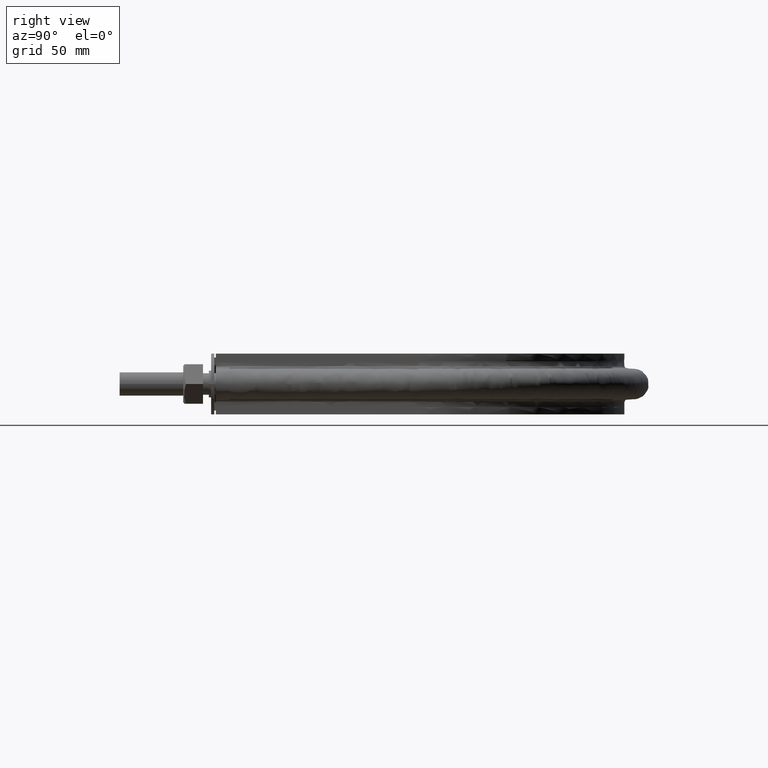
[diagram: clean part render]
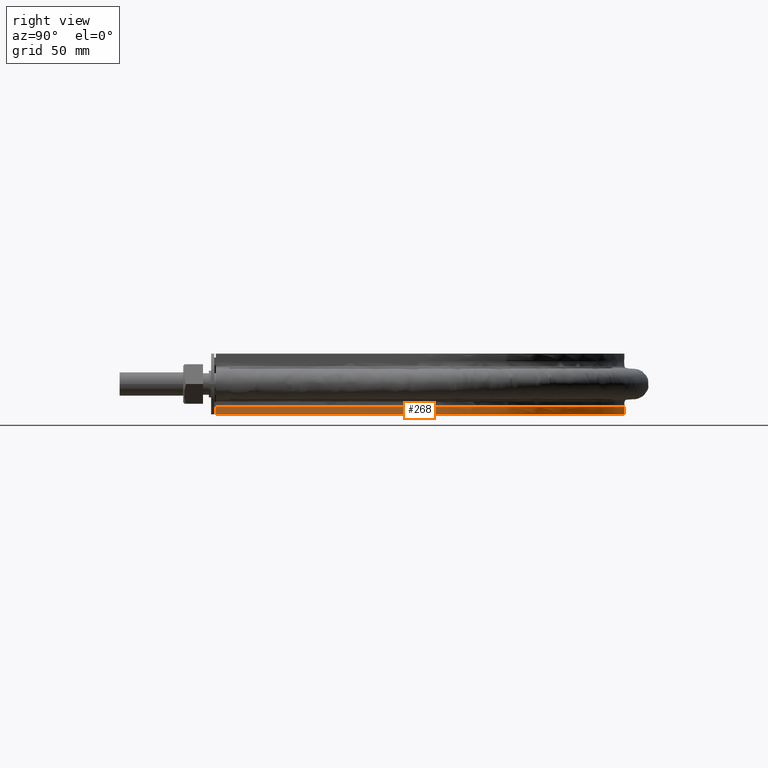
[diagram: same view with one face highlighted and labeled with its STEP entity id]
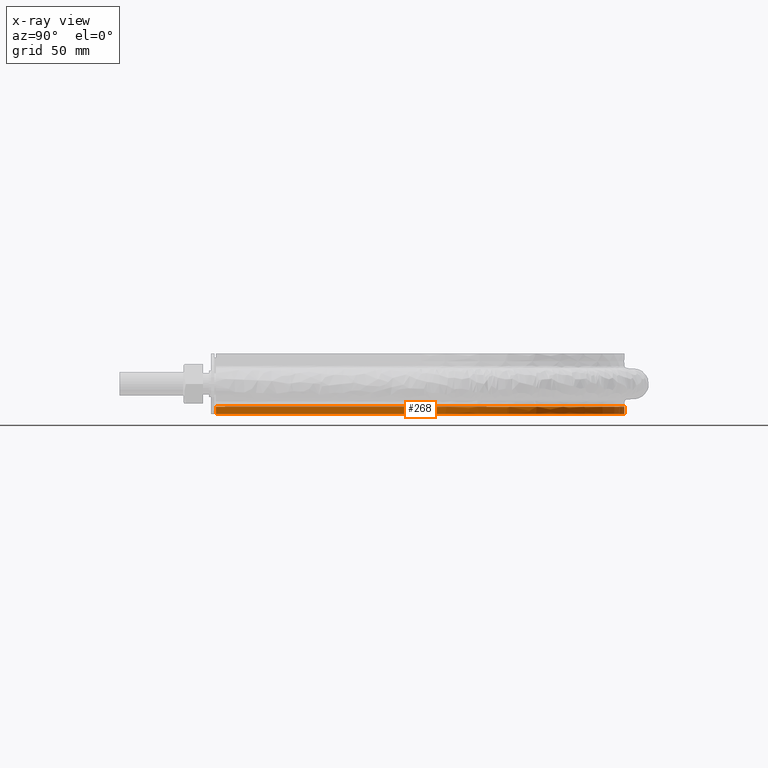
[diagram: x-ray of the same camera — body ghosted, the highlighted face saturated]
A machine part, right view. The second image highlights one B-rep face of the part: STEP entity #268.
The next image is the same camera in x-ray: the body ghosted, the highlighted face saturated — about 0% of this face is hidden behind the body in this view.
In plain terms, the highlighted face is a SurfaceOfExtrusion surface.
Its self-contained STEP definition (entity closure, byte-faithful):
#268 = ADVANCED_FACE( '', ( #365 ), #366, .T. );
#365 = FACE_OUTER_BOUND( '', #589, .T. );
#366 = SURFACE_OF_LINEAR_EXTRUSION( '', #590, #591 );
#589 = EDGE_LOOP( '', ( #1825, #1826, #1827, #1828 ) );
#590 = B_SPLINE_CURVE_WITH_KNOTS( '', 3, ( #1829, #1830, #1831, #1832, #1833, #1834, #1835, #1836, #1837, #1838, #1839, #1840, #1841, #1842, #1843, #1844, #1845, #1846, #1847, #1848, #1849, #1850, #1851, #1852, #1853, #1854, #1855, #1856, #1857, #1858, #1859, #1860, #1861, #1862, #1863, #1864, #1865, #1866, #1867, #1868, #1869, #1870, #1871, #1872, #1873, #1874, #1875, #1876, #1877, #1878, #1879, #1880, #1881, #1882, #1883, #1884, #1885, #1886, #1887, #1888, #1889, #1890, #1891, #1892, #1893, #1894, #1895, #1896, #1897, #1898, #1899, #1900, #1901, #1902, #1903, #1904, #1905, #1906, #1907, #1908, #1909, #1910, #1911, #1912, #1913, #1914, #1915, #1916, #1917, #1918, #1919, #1920, #1921 ), .UNSPECIFIED., .F., .F., ( 4, 1, 1, 2, 2, 2, 2, 2, 2, 2, 2, 2, 2, 2, 2, 2, 2, 2, 2, 2, 2, 2, 2, 2, 2, 2, 2, 2, 2, 2, 2, 2, 2, 2, 2, 2, 2, 2, 2, 2, 2, 2, 2, 2, 2, 2, 1, 4 ), ( 0.000000000000000, 0.125000000000002, 0.187500000000003, 0.191406250000003, 0.195312500000003, 0.203125000000002, 0.218750000000003, 0.250000000000003, 0.257812500000003, 0.265625000000003, 0.281250000000002, 0.312500000000002, 0.328125000000002, 0.343750000000002, 0.375000000000001, 0.390625000000001, 0.398437500000001, 0.406250000000001, 0.437500000000001, 0.453125000000001, 0.460937500000000, 0.468750000000000, 0.500000000000000, 0.515625000000000, 0.523437500000000, 0.531250000000000, 0.562500000000000, 0.578124999999999, 0.585937499999999, 0.593749999999999, 0.624999999999999, 0.656249999999999, 0.664062499999999, 0.671874999999999, 0.687499999999998, 0.718749999999998, 0.722656249999998, 0.726562499999998, 0.734374999999998, 0.749999999999998, 0.781249999999997, 0.789062499999997, 0.796874999999997, 0.804687499999997, 0.808593749999997, 0.812499999999996, 0.874999999999998, 1.00000000000000 ), .UNSPECIFIED. );
#591 = VECTOR( '', #1922, 1000.00000000000 );
#1825 = ORIENTED_EDGE( '', *, *, #2588, .T. );
#1826 = ORIENTED_EDGE( '', *, *, #2589, .T. );
#1827 = ORIENTED_EDGE( '', *, *, #2590, .F. );
#1828 = ORIENTED_EDGE( '', *, *, #2591, .F. );
#1829 = CARTESIAN_POINT( '', ( -136.950000000000, 63.5000000000001, -15.0000000000000 ) );
#1830 = CARTESIAN_POINT( '', ( -136.950000000000, 92.1083518142186, -15.0000000000000 ) );
#1831 = CARTESIAN_POINT( '', ( -136.950000000000, 135.020879535546, -15.0000000000000 ) );
#1832 = CARTESIAN_POINT( '', ( -136.950000000000, 178.827418251068, -15.0000000000000 ) );
#1833 = CARTESIAN_POINT( '', ( -136.950000000000, 194.025605152372, -15.0000000000000 ) );
#1834 = CARTESIAN_POINT( '', ( -136.950000000000, 195.813627140760, -15.0000000000000 ) );
#1835 = CARTESIAN_POINT( '', ( -136.951346114390, 196.707775042567, -15.0000000000000 ) );
#1836 = CARTESIAN_POINT( '', ( -136.920609614582, 199.386681945512, -15.0000000000000 ) );
#1837 = CARTESIAN_POINT( '', ( -136.864816667886, 201.169029468828, -15.0000000000000 ) );
#1838 = CARTESIAN_POINT( '', ( -136.593146380454, 206.505464995944, -15.0000000000000 ) );
#1839 = CARTESIAN_POINT( '', ( -136.273189661635, 210.048967525582, -15.0000000000000 ) );
#1840 = CARTESIAN_POINT( '', ( -134.901802697672, 220.637621477265, -15.0000000000000 ) );
#1841 = CARTESIAN_POINT( '', ( -133.442512350631, 227.641291170172, -15.0000000000000 ) );
#1842 = CARTESIAN_POINT( '', ( -130.901383601594, 236.322953634697, -15.0000000000000 ) );
#1843 = CARTESIAN_POINT( '', ( -130.357015832177, 238.055610275365, -15.0000000000000 ) );
#1844 = CARTESIAN_POINT( '', ( -129.193847954833, 241.513353357775, -15.0000000000000 ) );
#1845 = CARTESIAN_POINT( '', ( -128.573476846170, 243.242131151953, -15.0000000000000 ) );
#1846 = CARTESIAN_POINT( '', ( -126.618174555290, 248.362723165805, -15.0000000000000 ) );
#1847 = CARTESIAN_POINT( '', ( -125.184490197968, 251.702984774707, -15.0000000000000 ) );
#1848 = CARTESIAN_POINT( '', ( -120.505328593638, 261.510336023068, -15.0000000000000 ) );
#1849 = CARTESIAN_POINT( '', ( -116.886061102882, 267.766429658881, -15.0000000000000 ) );
#1850 = CARTESIAN_POINT( '', ( -110.711856714430, 276.729863608688, -15.0000000000000 ) );
#1851 = CARTESIAN_POINT( '', ( -108.528201325971, 279.647880339849, -15.0000000000000 ) );
#1852 = CARTESIAN_POINT( '', ( -103.904407759561, 285.334716161009, -15.0000000000000 ) );
#1853 = CARTESIAN_POINT( '', ( -101.494535344133, 288.066402872892, -15.0000000000000 ) );
#1854 = CARTESIAN_POINT( '', ( -93.9768857717446, 295.932991567950, -15.0000000000000 ) );
#1855 = CARTESIAN_POINT( '', ( -88.5810092968209, 300.739345713163, -15.0000000000000 ) );
#1856 = CARTESIAN_POINT( '', ( -79.9242816112247, 307.306932196036, -15.0000000000000 ) );
#1857 = CARTESIAN_POINT( '', ( -76.9444034133837, 309.388585548725, -15.0000000000000 ) );
#1858 = CARTESIAN_POINT( '', ( -72.3295994596727, 312.345723108325, -15.0000000000000 ) );
#1859 = CARTESIAN_POINT( '', ( -70.7649027135216, 313.304967513353, -15.0000000000000 ) );
#1860 = CARTESIAN_POINT( '', ( -67.6140063459477, 315.151291429898, -15.0000000000000 ) );
#1861 = CARTESIAN_POINT( '', ( -66.0248395654166, 316.040393152112, -15.0000000000000 ) );
#1862 = CARTESIAN_POINT( '', ( -58.0112237793678, 320.317614365294, -15.0000000000000 ) );
#1863 = CARTESIAN_POINT( '', ( -51.3838695117621, 323.201965048637, -15.0000000000000 ) );
#1864 = CARTESIAN_POINT( '', ( -41.1199306990064, 326.726783518546, -15.0000000000000 ) );
#1865 = CARTESIAN_POINT( '', ( -37.6449536795551, 327.768486983704, -15.0000000000000 ) );
#1866 = CARTESIAN_POINT( '', ( -32.3508572250080, 329.128370680882, -15.0000000000000 ) );
#1867 = CARTESIAN_POINT( '', ( -30.5711219683573, 329.548134877370, -15.0000000000000 ) );
#1868 = CARTESIAN_POINT( '', ( -26.9898806015859, 330.317593884026, -15.0000000000000 ) );
#1869 = CARTESIAN_POINT( '', ( -25.1975634552110, 330.665375332185, -15.0000000000000 ) );
#1870 = CARTESIAN_POINT( '', ( -16.2276412077899, 332.222717729931, -15.0000000000000 ) );
#1871 = CARTESIAN_POINT( '', ( -9.02523440856736, 332.892110978601, -15.0000000000000 ) );
#1872 = CARTESIAN_POINT( '', ( 1.81786937464440, 333.036051739121, -15.0000000000000 ) );
#1873 = CARTESIAN_POINT( '', ( 5.43888442947024, 332.939261125259, -15.0000000000000 ) );
#1874 = CARTESIAN_POINT( '', ( 10.8804397715058, 332.575567070277, -15.0000000000000 ) );
#1875 = CARTESIAN_POINT( '', ( 12.6959650568691, 332.417887683017, -15.0000000000000 ) );
#1876 = CARTESIAN_POINT( '', ( 16.3304010621810, 332.028795956680, -15.0000000000000 ) );
#1877 = CARTESIAN_POINT( '', ( 18.1509778757328, 331.796964222104, -15.0000000000000 ) );
#1878 = CARTESIAN_POINT( '', ( 27.1816143256275, 330.463826032725, -15.0000000000000 ) );
#1879 = CARTESIAN_POINT( '', ( 34.2390508622090, 328.839668956545, -15.0000000000000 ) );
#1880 = CARTESIAN_POINT( '', ( 44.5810778790186, 325.588595998648, -15.0000000000000 ) );
#1881 = CARTESIAN_POINT( '', ( 47.9874716560260, 324.368228980460, -15.0000000000000 ) );
#1882 = CARTESIAN_POINT( '', ( 53.0340989443394, 322.327522487613, -15.0000000000000 ) );
#1883 = CARTESIAN_POINT( '', ( 54.7057757971050, 321.612133002601, -15.0000000000000 ) );
#1884 = CARTESIAN_POINT( '', ( 58.0278931759406, 320.110472498891, -15.0000000000000 ) );
#1885 = CARTESIAN_POINT( '', ( 59.6804492387648, 319.323156348271, -15.0000000000000 ) );
#1886 = CARTESIAN_POINT( '', ( 67.8662269615211, 315.218943105620, -15.0000000000000 ) );
#1887 = CARTESIAN_POINT( '', ( 74.0672509269300, 311.457093171529, -15.0000000000000 ) );
#1888 = CARTESIAN_POINT( '', ( 85.8066697855656, 303.021264559786, -15.0000000000000 ) );
#1889 = CARTESIAN_POINT( '', ( 91.3450708111379, 298.347294323490, -15.0000000000000 ) );
#1890 = CARTESIAN_POINT( '', ( 97.8308624293475, 291.902999344751, -15.0000000000000 ) );
#1891 = CARTESIAN_POINT( '', ( 99.1063522438762, 290.583042958306, -15.0000000000000 ) );
#1892 = CARTESIAN_POINT( '', ( 101.590244963731, 287.906741637720, -15.0000000000000 ) );
#1893 = CARTESIAN_POINT( '', ( 102.801672903783, 286.547491271698, -15.0000000000000 ) );
#1894 = CARTESIAN_POINT( '', ( 106.346254323220, 282.407722078790, -15.0000000000000 ) );
#1895 = CARTESIAN_POINT( '', ( 108.589893323643, 279.565315081670, -15.0000000000000 ) );
#1896 = CARTESIAN_POINT( '', ( 114.970214089517, 270.795700236809, -15.0000000000000 ) );
#1897 = CARTESIAN_POINT( '', ( 118.759288976830, 264.628165305693, -15.0000000000000 ) );
#1898 = CARTESIAN_POINT( '', ( 122.482049801510, 257.316381079695, -15.0000000000000 ) );
#1899 = CARTESIAN_POINT( '', ( 122.888127373353, 256.498732064797, -15.0000000000000 ) );
#1900 = CARTESIAN_POINT( '', ( 123.684984798984, 254.852857558546, -15.0000000000000 ) );
#1901 = CARTESIAN_POINT( '', ( 124.076188679038, 254.023697389435, -15.0000000000000 ) );
#1902 = CARTESIAN_POINT( '', ( 125.223076035006, 251.527782870249, -15.0000000000000 ) );
#1903 = CARTESIAN_POINT( '', ( 125.951536386374, 249.853956327217, -15.0000000000000 ) );
#1904 = CARTESIAN_POINT( '', ( 128.029666807743, 244.803138776699, -15.0000000000000 ) );
#1905 = CARTESIAN_POINT( '', ( 129.272445179675, 241.396908032732, -15.0000000000000 ) );
#1906 = CARTESIAN_POINT( '', ( 132.586786070952, 231.064969568913, -15.0000000000000 ) );
#1907 = CARTESIAN_POINT( '', ( 134.247821790206, 224.026964115281, -15.0000000000000 ) );
#1908 = CARTESIAN_POINT( '', ( 135.630952375180, 215.039845429982, -15.0000000000000 ) );
#1909 = CARTESIAN_POINT( '', ( 135.872641992840, 213.232864972872, -15.0000000000000 ) );
#1910 = CARTESIAN_POINT( '', ( 136.284803757172, 209.599422844282, -15.0000000000000 ) );
#1911 = CARTESIAN_POINT( '', ( 136.455153129533, 207.772516640443, -15.0000000000000 ) );
#1912 = CARTESIAN_POINT( '', ( 136.721567786733, 204.123756924611, -15.0000000000000 ) );
#1913 = CARTESIAN_POINT( '', ( 136.818027802696, 202.298840221395, -15.0000000000000 ) );
#1914 = CARTESIAN_POINT( '', ( 136.907499245267, 199.560658472589, -15.0000000000000 ) );
#1915 = CARTESIAN_POINT( '', ( 136.928116262671, 198.647796719939, -15.0000000000000 ) );
#1916 = CARTESIAN_POINT( '', ( 136.950875956315, 196.821803321072, -15.0000000000000 ) );
#1917 = CARTESIAN_POINT( '', ( 136.950000000000, 195.908627575340, -15.0000000000000 ) );
#1918 = CARTESIAN_POINT( '', ( 136.950000000000, 180.384857445817, -15.0000000000000 ) );
#1919 = CARTESIAN_POINT( '', ( 136.950000000000, 136.553035903636, -15.0000000000000 ) );
#1920 = CARTESIAN_POINT( '', ( 136.950000000000, 92.7212143614546, -15.0000000000000 ) );
#1921 = CARTESIAN_POINT( '', ( 136.950000000000, 63.5000000000000, -15.0000000000000 ) );
#1922 = DIRECTION( '', ( -7.49830360911069E-032, -3.06151588455594E-016, -1.00000000000000 ) );
#2588 = EDGE_CURVE( '', #2784, #2785, #2786, .T. );
#2589 = EDGE_CURVE( '', #2785, #2787, #2788, .F. );
#2590 = EDGE_CURVE( '', #2789, #2787, #2790, .T. );
#2591 = EDGE_CURVE( '', #2784, #2789, #2791, .F. );
#2784 = VERTEX_POINT( '', #3230 );
#2785 = VERTEX_POINT( '', #3231 );
#2786 = B_SPLINE_CURVE_WITH_KNOTS( '', 3, ( #3232, #3233, #3234, #3235, #3236, #3237, #3238, #3239, #3240, #3241, #3242, #3243, #3244, #3245, #3246, #3247, #3248, #3249, #3250, #3251, #3252, #3253, #3254, #3255, #3256, #3257, #3258, #3259, #3260, #3261, #3262, #3263, #3264, #3265, #3266, #3267, #3268, #3269, #3270, #3271, #3272, #3273, #3274, #3275, #3276, #3277, #3278, #3279, #3280, #3281, #3282, #3283, #3284, #3285, #3286, #3287, #3288, #3289, #3290, #3291, #3292, #3293, #3294, #3295, #3296, #3297, #3298, #3299, #3300, #3301, #3302, #3303, #3304, #3305, #3306, #3307, #3308, #3309, #3310, #3311, #3312, #3313, #3314, #3315, #3316, #3317, #3318, #3319, #3320, #3321, #3322, #3323, #3324 ), .UNSPECIFIED., .F., .F., ( 4, 1, 1, 2, 2, 2, 2, 2, 2, 2, 2, 2, 2, 2, 2, 2, 2, 2, 2, 2, 2, 2, 2, 2, 2, 2, 2, 2, 2, 2, 2, 2, 2, 2, 2, 2, 2, 2, 2, 2, 2, 2, 2, 2, 2, 2, 1, 4 ), ( 0.000000000000000, 0.125000000000002, 0.187500000000003, 0.191406250000003, 0.195312500000003, 0.203125000000002, 0.218750000000003, 0.250000000000003, 0.257812500000003, 0.265625000000003, 0.281250000000002, 0.312500000000002, 0.328125000000002, 0.343750000000002, 0.375000000000001, 0.390625000000001, 0.398437500000001, 0.406250000000001, 0.437500000000001, 0.453125000000001, 0.460937500000000, 0.468750000000000, 0.500000000000000, 0.515625000000000, 0.523437500000000, 0.531250000000000, 0.562500000000000, 0.578124999999999, 0.585937499999999, 0.593749999999999, 0.624999999999999, 0.656249999999999, 0.664062499999999, 0.671874999999999, 0.687499999999998, 0.718749999999998, 0.722656249999998, 0.726562499999998, 0.734374999999998, 0.749999999999998, 0.781249999999997, 0.789062499999997, 0.796874999999997, 0.804687499999997, 0.808593749999997, 0.812499999999996, 0.874999999999998, 1.00000000000000 ), .UNSPECIFIED. );
#2787 = VERTEX_POINT( '', #3325 );
#2788 = LINE( '', #3326, #3327 );
#2789 = VERTEX_POINT( '', #3328 );
#2790 = B_SPLINE_CURVE_WITH_KNOTS( '', 3, ( #3329, #3330, #3331, #3332, #3333, #3334, #3335, #3336, #3337, #3338, #3339, #3340, #3341, #3342, #3343, #3344, #3345, #3346, #3347, #3348, #3349, #3350, #3351, #3352, #3353, #3354, #3355, #3356, #3357, #3358, #3359, #3360, #3361, #3362, #3363, #3364, #3365, #3366, #3367, #3368, #3369, #3370, #3371, #3372, #3373, #3374, #3375, #3376, #3377, #3378, #3379, #3380, #3381, #3382, #3383, #3384, #3385, #3386, #3387, #3388, #3389, #3390, #3391, #3392, #3393, #3394, #3395, #3396, #3397, #3398, #3399, #3400, #3401, #3402, #3403, #3404, #3405, #3406, #3407, #3408, #3409, #3410, #3411, #3412, #3413, #3414, #3415, #3416, #3417, #3418, #3419, #3420, #3421, #3422, #3423, #3424, #3425, #3426, #3427, #3428, #3429, #3430, #3431, #3432, #3433, #3434, #3435 ), .UNSPECIFIED., .F., .F., ( 4, 1, 2, 2, 2, 2, 2, 2, 2, 2, 2, 2, 2, 2, 2, 2, 2, 2, 2, 2, 2, 2, 2, 2, 2, 2, 2, 2, 2, 2, 2, 2, 2, 2, 2, 1, 2, 2, 2, 2, 2, 2, 2, 2, 2, 2, 2, 2, 2, 2, 2, 2, 2, 1, 4 ), ( 1.38777878078145E-017, 0.0874256844655843, 0.131138526698376, 0.133870579337926, 0.136602631977475, 0.142066737256574, 0.152994947814772, 0.174851368931168, 0.180315474210268, 0.183047526849817, 0.185779579489366, 0.196707790047564, 0.218564211163960, 0.229492421722158, 0.232224474361708, 0.234956527001257, 0.240420632280356, 0.262277053396752, 0.273205263954950, 0.275937316594499, 0.278669369234049, 0.284133474513148, 0.305989895629543, 0.316918106187741, 0.322382211466840, 0.325114264106390, 0.327846316745939, 0.349702737862335, 0.360630948420533, 0.366095053699632, 0.368827106339181, 0.371559158978731, 0.393415580095126, 0.415272001211522, 0.418004053851071, 0.420736106490621, 0.426200211769720, 0.437128422327918, 0.458984843444315, 0.461716896083864, 0.464448948723414, 0.469913054002513, 0.480841264560711, 0.502697685677107, 0.508161790956207, 0.513625896235306, 0.524554106793504, 0.546410527909900, 0.551874633188999, 0.557338738468098, 0.562802843747197, 0.565534896386746, 0.568266949026296, 0.611979791259089, 0.699405475724676 ), .UNSPECIFIED. );
#2791 = LINE( '', #3436, #3437 );
#3230 = CARTESIAN_POINT( '', ( -136.950000000000, 63.5000000000001, -15.0000000000000 ) );
#3231 = CARTESIAN_POINT( '', ( 136.950000000000, 63.5000000000001, -15.0000000000000 ) );
#3232 = CARTESIAN_POINT( '', ( -136.950000000000, 63.5000000000001, -15.0000000000000 ) );
#3233 = CARTESIAN_POINT( '', ( -136.950000000000, 92.1083518142186, -15.0000000000000 ) );
#3234 = CARTESIAN_POINT( '', ( -136.950000000000, 135.020879535546, -15.0000000000000 ) );
#3235 = CARTESIAN_POINT( '', ( -136.950000000000, 178.827418251068, -15.0000000000000 ) );
#3236 = CARTESIAN_POINT( '', ( -136.950000000000, 194.025605152372, -15.0000000000000 ) );
#3237 = CARTESIAN_POINT( '', ( -136.950000000000, 195.813627140760, -15.0000000000000 ) );
#3238 = CARTESIAN_POINT( '', ( -136.951346114390, 196.707775042567, -15.0000000000000 ) );
#3239 = CARTESIAN_POINT( '', ( -136.920609614582, 199.386681945512, -15.0000000000000 ) );
#3240 = CARTESIAN_POINT( '', ( -136.864816667886, 201.169029468828, -15.0000000000000 ) );
#3241 = CARTESIAN_POINT( '', ( -136.593146380454, 206.505464995944, -15.0000000000000 ) );
#3242 = CARTESIAN_POINT( '', ( -136.273189661635, 210.048967525582, -15.0000000000000 ) );
#3243 = CARTESIAN_POINT( '', ( -134.901802697672, 220.637621477265, -15.0000000000000 ) );
#3244 = CARTESIAN_POINT( '', ( -133.442512350631, 227.641291170172, -15.0000000000000 ) );
#3245 = CARTESIAN_POINT( '', ( -130.901383601594, 236.322953634697, -15.0000000000000 ) );
#3246 = CARTESIAN_POINT( '', ( -130.357015832177, 238.055610275365, -15.0000000000000 ) );
#3247 = CARTESIAN_POINT( '', ( -129.193847954833, 241.513353357775, -15.0000000000000 ) );
#3248 = CARTESIAN_POINT( '', ( -128.573476846170, 243.242131151953, -15.0000000000000 ) );
#3249 = CARTESIAN_POINT( '', ( -126.618174555290, 248.362723165805, -15.0000000000000 ) );
#3250 = CARTESIAN_POINT( '', ( -125.184490197968, 251.702984774707, -15.0000000000000 ) );
#3251 = CARTESIAN_POINT( '', ( -120.505328593638, 261.510336023068, -15.0000000000000 ) );
#3252 = CARTESIAN_POINT( '', ( -116.886061102882, 267.766429658881, -15.0000000000000 ) );
#3253 = CARTESIAN_POINT( '', ( -110.711856714430, 276.729863608688, -15.0000000000000 ) );
#3254 = CARTESIAN_POINT( '', ( -108.528201325971, 279.647880339849, -15.0000000000000 ) );
#3255 = CARTESIAN_POINT( '', ( -103.904407759561, 285.334716161009, -15.0000000000000 ) );
#3256 = CARTESIAN_POINT( '', ( -101.494535344133, 288.066402872892, -15.0000000000000 ) );
#3257 = CARTESIAN_POINT( '', ( -93.9768857717446, 295.932991567950, -15.0000000000000 ) );
#3258 = CARTESIAN_POINT( '', ( -88.5810092968209, 300.739345713163, -15.0000000000000 ) );
#3259 = CARTESIAN_POINT( '', ( -79.9242816112247, 307.306932196036, -15.0000000000000 ) );
#3260 = CARTESIAN_POINT( '', ( -76.9444034133837, 309.388585548725, -15.0000000000000 ) );
#3261 = CARTESIAN_POINT( '', ( -72.3295994596727, 312.345723108325, -15.0000000000000 ) );
#3262 = CARTESIAN_POINT( '', ( -70.7649027135216, 313.304967513353, -15.0000000000000 ) );
#3263 = CARTESIAN_POINT( '', ( -67.6140063459477, 315.151291429898, -15.0000000000000 ) );
#3264 = CARTESIAN_POINT( '', ( -66.0248395654166, 316.040393152112, -15.0000000000000 ) );
#3265 = CARTESIAN_POINT( '', ( -58.0112237793678, 320.317614365294, -15.0000000000000 ) );
#3266 = CARTESIAN_POINT( '', ( -51.3838695117621, 323.201965048637, -15.0000000000000 ) );
#3267 = CARTESIAN_POINT( '', ( -41.1199306990064, 326.726783518546, -15.0000000000000 ) );
#3268 = CARTESIAN_POINT( '', ( -37.6449536795551, 327.768486983704, -15.0000000000000 ) );
#3269 = CARTESIAN_POINT( '', ( -32.3508572250080, 329.128370680882, -15.0000000000000 ) );
#3270 = CARTESIAN_POINT( '', ( -30.5711219683573, 329.548134877370, -15.0000000000000 ) );
#3271 = CARTESIAN_POINT( '', ( -26.9898806015859, 330.317593884026, -15.0000000000000 ) );
#3272 = CARTESIAN_POINT( '', ( -25.1975634552110, 330.665375332185, -15.0000000000000 ) );
#3273 = CARTESIAN_POINT( '', ( -16.2276412077899, 332.222717729931, -15.0000000000000 ) );
#3274 = CARTESIAN_POINT( '', ( -9.02523440856736, 332.892110978601, -15.0000000000000 ) );
#3275 = CARTESIAN_POINT( '', ( 1.81786937464440, 333.036051739121, -15.0000000000000 ) );
#3276 = CARTESIAN_POINT( '', ( 5.43888442947024, 332.939261125259, -15.0000000000000 ) );
#3277 = CARTESIAN_POINT( '', ( 10.8804397715058, 332.575567070277, -15.0000000000000 ) );
#3278 = CARTESIAN_POINT( '', ( 12.6959650568691, 332.417887683017, -15.0000000000000 ) );
#3279 = CARTESIAN_POINT( '', ( 16.3304010621810, 332.028795956680, -15.0000000000000 ) );
#3280 = CARTESIAN_POINT( '', ( 18.1509778757328, 331.796964222104, -15.0000000000000 ) );
#3281 = CARTESIAN_POINT( '', ( 27.1816143256275, 330.463826032725, -15.0000000000000 ) );
#3282 = CARTESIAN_POINT( '', ( 34.2390508622090, 328.839668956545, -15.0000000000000 ) );
#3283 = CARTESIAN_POINT( '', ( 44.5810778790186, 325.588595998648, -15.0000000000000 ) );
#3284 = CARTESIAN_POINT( '', ( 47.9874716560260, 324.368228980460, -15.0000000000000 ) );
#3285 = CARTESIAN_POINT( '', ( 53.0340989443394, 322.327522487613, -15.0000000000000 ) );
#3286 = CARTESIAN_POINT( '', ( 54.7057757971050, 321.612133002601, -15.0000000000000 ) );
#3287 = CARTESIAN_POINT( '', ( 58.0278931759406, 320.110472498891, -15.0000000000000 ) );
#3288 = CARTESIAN_POINT( '', ( 59.6804492387648, 319.323156348271, -15.0000000000000 ) );
#3289 = CARTESIAN_POINT( '', ( 67.8662269615211, 315.218943105620, -15.0000000000000 ) );
#3290 = CARTESIAN_POINT( '', ( 74.0672509269300, 311.457093171529, -15.0000000000000 ) );
#3291 = CARTESIAN_POINT( '', ( 85.8066697855656, 303.021264559786, -15.0000000000000 ) );
#3292 = CARTESIAN_POINT( '', ( 91.3450708111379, 298.347294323490, -15.0000000000000 ) );
#3293 = CARTESIAN_POINT( '', ( 97.8308624293475, 291.902999344751, -15.0000000000000 ) );
#3294 = CARTESIAN_POINT( '', ( 99.1063522438762, 290.583042958306, -15.0000000000000 ) );
#3295 = CARTESIAN_POINT( '', ( 101.590244963731, 287.906741637720, -15.0000000000000 ) );
#3296 = CARTESIAN_POINT( '', ( 102.801672903783, 286.547491271698, -15.0000000000000 ) );
#3297 = CARTESIAN_POINT( '', ( 106.346254323220, 282.407722078790, -15.0000000000000 ) );
#3298 = CARTESIAN_POINT( '', ( 108.589893323643, 279.565315081670, -15.0000000000000 ) );
#3299 = CARTESIAN_POINT( '', ( 114.970214089517, 270.795700236809, -15.0000000000000 ) );
#3300 = CARTESIAN_POINT( '', ( 118.759288976830, 264.628165305693, -15.0000000000000 ) );
#3301 = CARTESIAN_POINT( '', ( 122.482049801510, 257.316381079695, -15.0000000000000 ) );
#3302 = CARTESIAN_POINT( '', ( 122.888127373353, 256.498732064797, -15.0000000000000 ) );
#3303 = CARTESIAN_POINT( '', ( 123.684984798984, 254.852857558546, -15.0000000000000 ) );
#3304 = CARTESIAN_POINT( '', ( 124.076188679038, 254.023697389435, -15.0000000000000 ) );
#3305 = CARTESIAN_POINT( '', ( 125.223076035006, 251.527782870249, -15.0000000000000 ) );
#3306 = CARTESIAN_POINT( '', ( 125.951536386374, 249.853956327217, -15.0000000000000 ) );
#3307 = CARTESIAN_POINT( '', ( 128.029666807743, 244.803138776699, -15.0000000000000 ) );
#3308 = CARTESIAN_POINT( '', ( 129.272445179675, 241.396908032732, -15.0000000000000 ) );
#3309 = CARTESIAN_POINT( '', ( 132.586786070952, 231.064969568913, -15.0000000000000 ) );
#3310 = CARTESIAN_POINT( '', ( 134.247821790206, 224.026964115281, -15.0000000000000 ) );
#3311 = CARTESIAN_POINT( '', ( 135.630952375180, 215.039845429982, -15.0000000000000 ) );
#3312 = CARTESIAN_POINT( '', ( 135.872641992840, 213.232864972872, -15.0000000000000 ) );
#3313 = CARTESIAN_POINT( '', ( 136.284803757172, 209.599422844282, -15.0000000000000 ) );
#3314 = CARTESIAN_POINT( '', ( 136.455153129533, 207.772516640443, -15.0000000000000 ) );
#3315 = CARTESIAN_POINT( '', ( 136.721567786733, 204.123756924611, -15.0000000000000 ) );
#3316 = CARTESIAN_POINT( '', ( 136.818027802696, 202.298840221395, -15.0000000000000 ) );
#3317 = CARTESIAN_POINT( '', ( 136.907499245267, 199.560658472589, -15.0000000000000 ) );
#3318 = CARTESIAN_POINT( '', ( 136.928116262671, 198.647796719939, -15.0000000000000 ) );
#3319 = CARTESIAN_POINT( '', ( 136.950875956315, 196.821803321072, -15.0000000000000 ) );
#3320 = CARTESIAN_POINT( '', ( 136.950000000000, 195.908627575340, -15.0000000000000 ) );
#3321 = CARTESIAN_POINT( '', ( 136.950000000000, 180.384857445817, -15.0000000000000 ) );
#3322 = CARTESIAN_POINT( '', ( 136.950000000000, 136.553035903636, -15.0000000000000 ) );
#3323 = CARTESIAN_POINT( '', ( 136.950000000000, 92.7212143614546, -15.0000000000000 ) );
#3324 = CARTESIAN_POINT( '', ( 136.950000000000, 63.5000000000000, -15.0000000000000 ) );
#3325 = CARTESIAN_POINT( '', ( 136.950000000000, 63.5000000000000, -20.0000000000000 ) );
#3326 = CARTESIAN_POINT( '', ( 136.950000000000, 63.5000000000001, 15.0000000000000 ) );
#3327 = VECTOR( '', #4142, 1000.00000000000 );
#3328 = CARTESIAN_POINT( '', ( -136.950000000000, 63.5000000000001, -20.0000000000000 ) );
#3329 = CARTESIAN_POINT( '', ( -136.950000000000, 63.5000000000001, -20.0000000000000 ) );
#3330 = CARTESIAN_POINT( '', ( -136.950000000000, 92.6419002480977, -20.0000000000000 ) );
#3331 = CARTESIAN_POINT( '', ( -136.950000000000, 136.354750620244, -20.0000000000000 ) );
#3332 = CARTESIAN_POINT( '', ( -136.949999999999, 180.067600992390, -20.0000000000000 ) );
#3333 = CARTESIAN_POINT( '', ( -136.950000000000, 195.549235499192, -20.0000000000000 ) );
#3334 = CARTESIAN_POINT( '', ( -136.952005766823, 196.459921105958, -20.0000000000000 ) );
#3335 = CARTESIAN_POINT( '', ( -136.934979206279, 198.281279481061, -20.0000000000000 ) );
#3336 = CARTESIAN_POINT( '', ( -136.916553871831, 199.191952619814, -20.0000000000000 ) );
#3337 = CARTESIAN_POINT( '', ( -136.834753701177, 201.923955849786, -20.0000000000000 ) );
#3338 = CARTESIAN_POINT( '', ( -136.743599783762, 203.741272047873, -20.0000000000000 ) );
#3339 = CARTESIAN_POINT( '', ( -136.363495553162, 209.166484778745, -20.0000000000000 ) );
#3340 = CARTESIAN_POINT( '', ( -135.967488703048, 212.753870458485, -20.0000000000000 ) );
#3341 = CARTESIAN_POINT( '', ( -134.367551969832, 223.431038801510, -20.0000000000000 ) );
#3342 = CARTESIAN_POINT( '', ( -132.750553866293, 230.435595074197, -20.0000000000000 ) );
#3343 = CARTESIAN_POINT( '', ( -130.033489035348, 239.047725779316, -20.0000000000000 ) );
#3344 = CARTESIAN_POINT( '', ( -129.454886141076, 240.762891350759, -20.0000000000000 ) );
#3345 = CARTESIAN_POINT( '', ( -128.533317502651, 243.324567410148, -20.0000000000000 ) );
#3346 = CARTESIAN_POINT( '', ( -128.217212893147, 244.176620027553, -20.0000000000000 ) );
#3347 = CARTESIAN_POINT( '', ( -127.566740219218, 245.876957051047, -20.0000000000000 ) );
#3348 = CARTESIAN_POINT( '', ( -127.232398800355, 246.725180838084, -20.0000000000000 ) );
#3349 = CARTESIAN_POINT( '', ( -125.522807242116, 250.937555990542, -20.0000000000000 ) );
#3350 = CARTESIAN_POINT( '', ( -124.027890382200, 254.231015655091, -20.0000000000000 ) );
#3351 = CARTESIAN_POINT( '', ( -119.177772488663, 263.891903517813, -20.0000000000000 ) );
#3352 = CARTESIAN_POINT( '', ( -115.456951462215, 270.039688790401, -20.0000000000000 ) );
#3353 = CARTESIAN_POINT( '', ( -109.152951019671, 278.827169774978, -20.0000000000000 ) );
#3354 = CARTESIAN_POINT( '', ( -106.930050833052, 281.683299996958, -20.0000000000000 ) );
#3355 = CARTESIAN_POINT( '', ( -103.994442146734, 285.159156375517, -20.0000000000000 ) );
#3356 = CARTESIAN_POINT( '', ( -103.399206220781, 285.849830869776, -20.0000000000000 ) );
#3357 = CARTESIAN_POINT( '', ( -102.198265091276, 287.215468669276, -20.0000000000000 ) );
#3358 = CARTESIAN_POINT( '', ( -101.591920700930, 287.891203542519, -20.0000000000000 ) );
#3359 = CARTESIAN_POINT( '', ( -99.7553846231896, 289.897299082130, -20.0000000000000 ) );
#3360 = CARTESIAN_POINT( '', ( -98.5077032633126, 291.206566629287, -20.0000000000000 ) );
#3361 = CARTESIAN_POINT( '', ( -92.1539858602990, 297.613835991369, -20.0000000000000 ) );
#3362 = CARTESIAN_POINT( '', ( -86.7024715106600, 302.295179626359, -20.0000000000000 ) );
#3363 = CARTESIAN_POINT( '', ( -77.9891669345055, 308.670721620162, -20.0000000000000 ) );
#3364 = CARTESIAN_POINT( '', ( -74.9946413234051, 310.687249879649, -20.0000000000000 ) );
#3365 = CARTESIAN_POINT( '', ( -71.1363767592699, 313.069086719333, -20.0000000000000 ) );
#3366 = CARTESIAN_POINT( '', ( -70.3589796436339, 313.538526390096, -20.0000000000000 ) );
#3367 = CARTESIAN_POINT( '', ( -68.7925101038814, 314.463324926286, -20.0000000000000 ) );
#3368 = CARTESIAN_POINT( '', ( -68.0028416365653, 314.918994503190, -20.0000000000000 ) );
#3369 = CARTESIAN_POINT( '', ( -65.6265150792892, 316.258978990773, -20.0000000000000 ) );
#3370 = CARTESIAN_POINT( '', ( -64.0295971988731, 317.118030590870, -20.0000000000000 ) );
#3371 = CARTESIAN_POINT( '', ( -55.9824089667674, 321.244365806939, -20.0000000000000 ) );
#3372 = CARTESIAN_POINT( '', ( -49.3439512001528, 324.003826159948, -20.0000000000000 ) );
#3373 = CARTESIAN_POINT( '', ( -39.0910082444972, 327.346268295590, -20.0000000000000 ) );
#3374 = CARTESIAN_POINT( '', ( -35.6241551653278, 328.327634953126, -20.0000000000000 ) );
#3375 = CARTESIAN_POINT( '', ( -30.3492784457214, 329.598384851549, -20.0000000000000 ) );
#3376 = CARTESIAN_POINT( '', ( -28.5785337099363, 329.988365122304, -20.0000000000000 ) );
#3377 = CARTESIAN_POINT( '', ( -25.9034309357588, 330.522102744637, -20.0000000000000 ) );
#3378 = CARTESIAN_POINT( '', ( -25.0077107436035, 330.691611247168, -20.0000000000000 ) );
#3379 = CARTESIAN_POINT( '', ( -23.2172138820077, 331.012112274078, -20.0000000000000 ) );
#3380 = CARTESIAN_POINT( '', ( -22.3218036874202, 331.163270419115, -20.0000000000000 ) );
#3381 = CARTESIAN_POINT( '', ( -14.2616746941668, 332.442909678168, -20.0000000000000 ) );
#3382 = CARTESIAN_POINT( '', ( -7.08688203431427, 333.005162357812, -20.0000000000000 ) );
#3383 = CARTESIAN_POINT( '', ( 3.69045053044961, 332.997356057590, -20.0000000000000 ) );
#3384 = CARTESIAN_POINT( '', ( 7.28543714269058, 332.851850186394, -20.0000000000000 ) );
#3385 = CARTESIAN_POINT( '', ( 12.6817359396748, 332.418941046074, -20.0000000000000 ) );
#3386 = CARTESIAN_POINT( '', ( 14.4811397915362, 332.238800753868, -20.0000000000000 ) );
#3387 = CARTESIAN_POINT( '', ( 17.1812121944223, 331.914258555030, -20.0000000000000 ) );
#3388 = CARTESIAN_POINT( '', ( 18.0813968219200, 331.797056870436, -20.0000000000000 ) );
#3389 = CARTESIAN_POINT( '', ( 19.8820902819464, 331.544430686409, -20.0000000000000 ) );
#3390 = CARTESIAN_POINT( '', ( 20.7835449490411, 331.408813108141, -20.0000000000000 ) );
#3391 = CARTESIAN_POINT( '', ( 28.8670965883821, 330.111328549364, -20.0000000000000 ) );
#3392 = CARTESIAN_POINT( '', ( 35.8703135520978, 328.406800400232, -20.0000000000000 ) );
#3393 = CARTESIAN_POINT( '', ( 49.5251538415544, 323.933849723644, -20.0000000000000 ) );
#3394 = CARTESIAN_POINT( '', ( 56.1748232267839, 321.159514727642, -20.0000000000000 ) );
#3395 = CARTESIAN_POINT( '', ( 63.4492399728087, 317.413652350479, -20.0000000000000 ) );
#3396 = CARTESIAN_POINT( '', ( 64.2555412528509, 316.988297906812, -20.0000000000000 ) );
#3397 = CARTESIAN_POINT( '', ( 65.8566175141637, 316.123190874316, -20.0000000000000 ) );
#3398 = CARTESIAN_POINT( '', ( 68.2414579242997, 314.803750954361, -20.0000000000000 ) );
#3399 = CARTESIAN_POINT( '', ( 70.5763589403752, 313.419469626310, -20.0000000000000 ) );
#3400 = CARTESIAN_POINT( '', ( 75.1805857318930, 310.565763947977, -20.0000000000000 ) );
#3401 = CARTESIAN_POINT( '', ( 78.1627035340811, 308.549856366451, -20.0000000000000 ) );
#3402 = CARTESIAN_POINT( '', ( 86.8543207620395, 302.171383663367, -20.0000000000000 ) );
#3403 = CARTESIAN_POINT( '', ( 92.3077229888379, 297.476301431765, -20.0000000000000 ) );
#3404 = CARTESIAN_POINT( '', ( 98.0418417248404, 291.673728261727, -20.0000000000000 ) );
#3405 = CARTESIAN_POINT( '', ( 98.6733697505285, 291.021731690663, -20.0000000000000 ) );
#3406 = CARTESIAN_POINT( '', ( 99.9251833237753, 289.703141292680, -20.0000000000000 ) );
#3407 = CARTESIAN_POINT( '', ( 100.546136743136, 289.035752086237, -20.0000000000000 ) );
#3408 = CARTESIAN_POINT( '', ( 102.386046552856, 287.018007311469, -20.0000000000000 ) );
#3409 = CARTESIAN_POINT( '', ( 103.581668710415, 285.652670943038, -20.0000000000000 ) );
#3410 = CARTESIAN_POINT( '', ( 107.077810366195, 281.497593093919, -20.0000000000000 ) );
#3411 = CARTESIAN_POINT( '', ( 109.287409665403, 278.648655660809, -20.0000000000000 ) );
#3412 = CARTESIAN_POINT( '', ( 115.563663674952, 269.872310524428, -20.0000000000000 ) );
#3413 = CARTESIAN_POINT( '', ( 119.278439319529, 263.715802833906, -20.0000000000000 ) );
#3414 = CARTESIAN_POINT( '', ( 123.322162063998, 255.629687512519, -20.0000000000000 ) );
#3415 = CARTESIAN_POINT( '', ( 124.100657851929, 253.992770208302, -20.0000000000000 ) );
#3416 = CARTESIAN_POINT( '', ( 125.595826737251, 250.678684334610, -20.0000000000000 ) );
#3417 = CARTESIAN_POINT( '', ( 126.312684101755, 249.000403133012, -20.0000000000000 ) );
#3418 = CARTESIAN_POINT( '', ( 128.350441665646, 243.950404789004, -20.0000000000000 ) );
#3419 = CARTESIAN_POINT( '', ( 129.565681668817, 240.548771227835, -20.0000000000000 ) );
#3420 = CARTESIAN_POINT( '', ( 132.799201309553, 230.243261059045, -20.0000000000000 ) );
#3421 = CARTESIAN_POINT( '', ( 134.406489655848, 223.239070076662, -20.0000000000000 ) );
#3422 = CARTESIAN_POINT( '', ( 135.730368078418, 214.316580552520, -20.0000000000000 ) );
#3423 = CARTESIAN_POINT( '', ( 135.960596827439, 212.523650463586, -20.0000000000000 ) );
#3424 = CARTESIAN_POINT( '', ( 136.350715609652, 208.920622076926, -20.0000000000000 ) );
#3425 = CARTESIAN_POINT( '', ( 136.510773884774, 207.109390090215, -20.0000000000000 ) );
#3426 = CARTESIAN_POINT( '', ( 136.758613068843, 203.474281669830, -20.0000000000000 ) );
#3427 = CARTESIAN_POINT( '', ( 136.846031799769, 201.656639207717, -20.0000000000000 ) );
#3428 = CARTESIAN_POINT( '', ( 136.922369077726, 198.930043041098, -20.0000000000000 ) );
#3429 = CARTESIAN_POINT( '', ( 136.939052762000, 198.021156467247, -20.0000000000000 ) );
#3430 = CARTESIAN_POINT( '', ( 136.951967908155, 196.203333870083, -20.0000000000000 ) );
#3431 = CARTESIAN_POINT( '', ( 136.950000000000, 195.294402200341, -20.0000000000000 ) );
#3432 = CARTESIAN_POINT( '', ( 136.950000000000, 179.842644700991, -20.0000000000000 ) );
#3433 = CARTESIAN_POINT( '', ( 136.950000000000, 136.214152938119, -20.0000000000000 ) );
#3434 = CARTESIAN_POINT( '', ( 136.950000000000, 92.5856611752478, -20.0000000000000 ) );
#3435 = CARTESIAN_POINT( '', ( 136.950000000000, 63.4999999999999, -20.0000000000000 ) );
#3436 = CARTESIAN_POINT( '', ( -136.950000000000, 63.5000000000001, 15.0000000000000 ) );
#3437 = VECTOR( '', #4143, 1000.00000000000 );
#4142 = DIRECTION( '', ( 0.000000000000000, 0.000000000000000, 1.00000000000000 ) );
#4143 = DIRECTION( '', ( 0.000000000000000, 0.000000000000000, 1.00000000000000 ) );